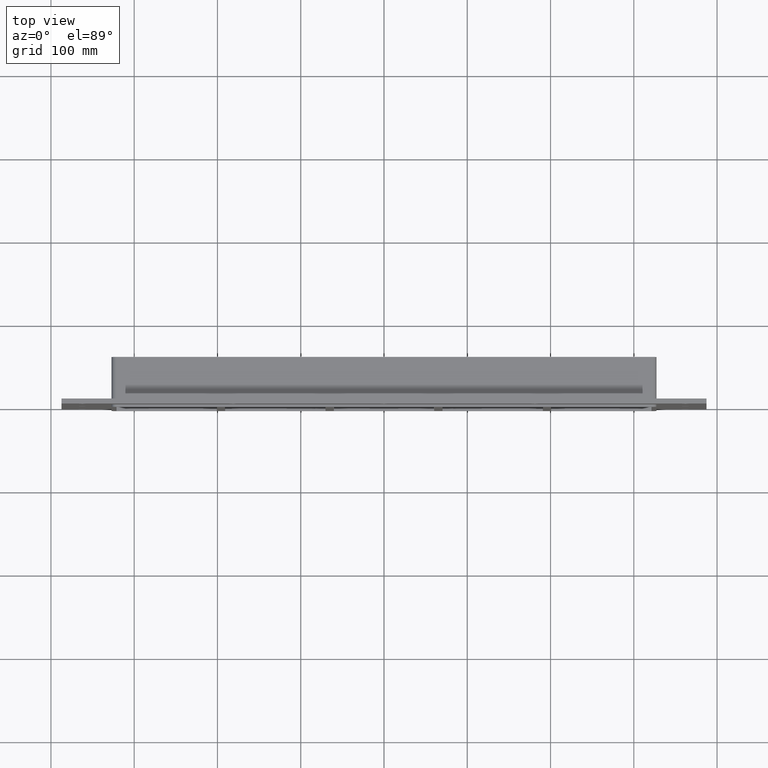
[diagram: clean part render]
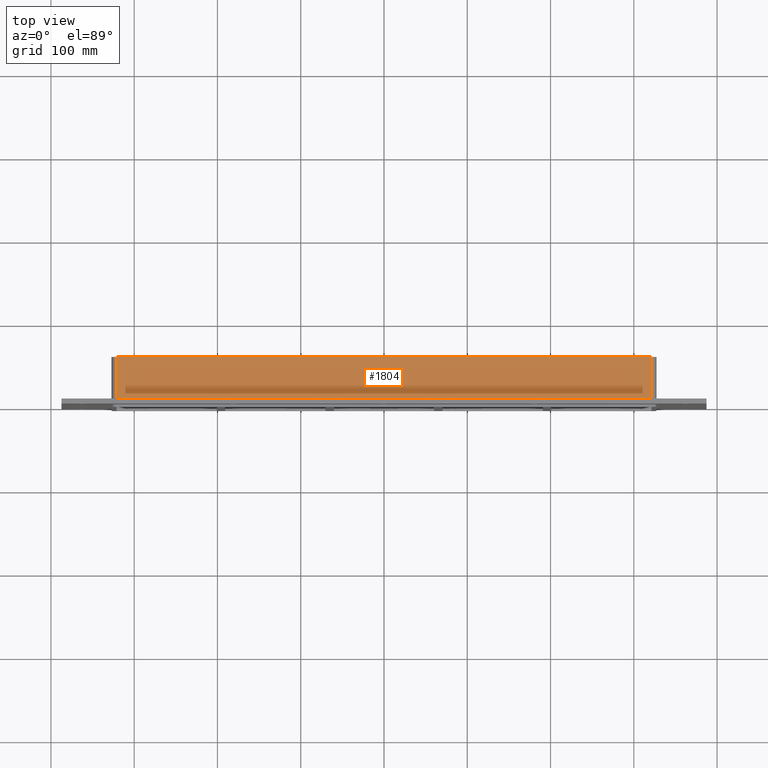
[diagram: same view with one face highlighted and labeled with its STEP entity id]
A machine part, top view. The second image highlights one B-rep face of the part: STEP entity #1804.
In plain terms, the highlighted planar face has unit normal (0, 0, 1).
Its self-contained STEP definition (entity closure, byte-faithful):
#1091=CARTESIAN_POINT('',(321.25,6.000000000000001,145.0));
#1092=VERTEX_POINT('',#1091);
#1100=CARTESIAN_POINT('',(-321.25,6.000000000000001,145.0));
#1101=VERTEX_POINT('',#1100);
#1102=CARTESIAN_POINT('',(-321.25,6.000000000000001,145.0));
#1103=DIRECTION('',(1.0,0.0,0.0));
#1104=VECTOR('',#1103,642.5);
#1105=LINE('',#1102,#1104);
#1106=EDGE_CURVE('',#1101,#1092,#1105,.T.);
#1408=CARTESIAN_POINT('',(321.24999999999994,57.0,145.0));
#1409=VERTEX_POINT('',#1408);
#1417=CARTESIAN_POINT('',(321.25,57.0,145.0));
#1418=DIRECTION('',(0.0,-1.0,0.0));
#1419=VECTOR('',#1418,51.0);
#1420=LINE('',#1417,#1419);
#1421=EDGE_CURVE('',#1409,#1092,#1420,.T.);
#1769=CARTESIAN_POINT('',(-321.25,57.0,145.0));
#1770=VERTEX_POINT('',#1769);
#1771=CARTESIAN_POINT('',(-321.25,6.000000000000001,145.0));
#1772=DIRECTION('',(0.0,1.0,0.0));
#1773=VECTOR('',#1772,51.0);
#1774=LINE('',#1771,#1773);
#1775=EDGE_CURVE('',#1101,#1770,#1774,.T.);
#1788=CARTESIAN_POINT('',(-327.25,0.0,145.0));
#1789=DIRECTION('',(0.0,0.0,1.0));
#1790=DIRECTION('',(1.0,0.0,0.0));
#1791=AXIS2_PLACEMENT_3D('',#1788,#1789,#1790);
#1792=PLANE('',#1791);
#1793=ORIENTED_EDGE('',*,*,#1106,.T.);
#1794=ORIENTED_EDGE('',*,*,#1421,.F.);
#1795=CARTESIAN_POINT('',(-321.25,57.0,145.0));
#1796=DIRECTION('',(1.0,0.0,0.0));
#1797=VECTOR('',#1796,642.5);
#1798=LINE('',#1795,#1797);
#1799=EDGE_CURVE('',#1770,#1409,#1798,.T.);
#1800=ORIENTED_EDGE('',*,*,#1799,.F.);
#1801=ORIENTED_EDGE('',*,*,#1775,.F.);
#1802=EDGE_LOOP('',(#1793,#1794,#1800,#1801));
#1803=FACE_OUTER_BOUND('',#1802,.T.);
#1804=ADVANCED_FACE('',(#1803),#1792,.T.);